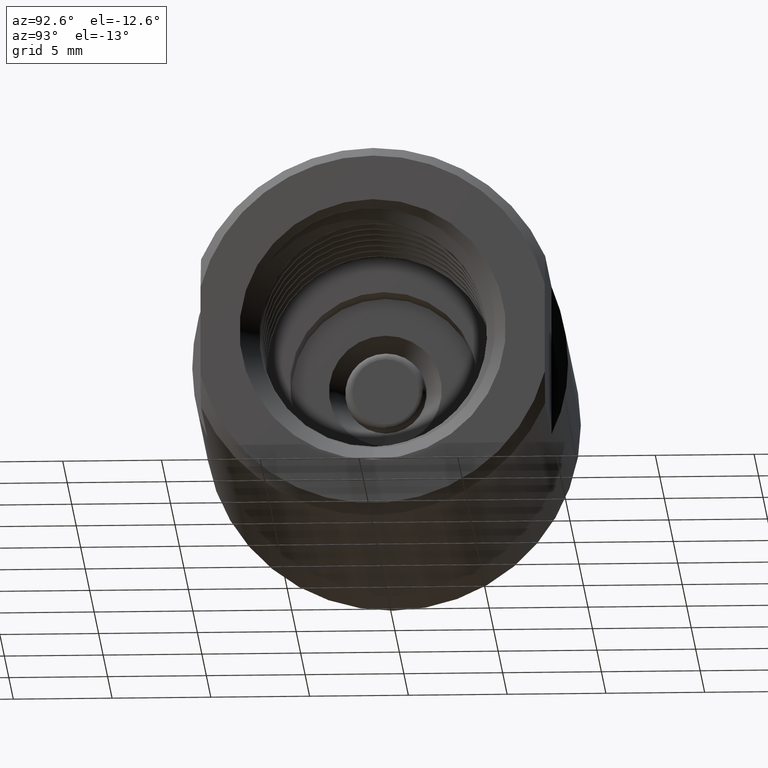
[diagram: clean part render]
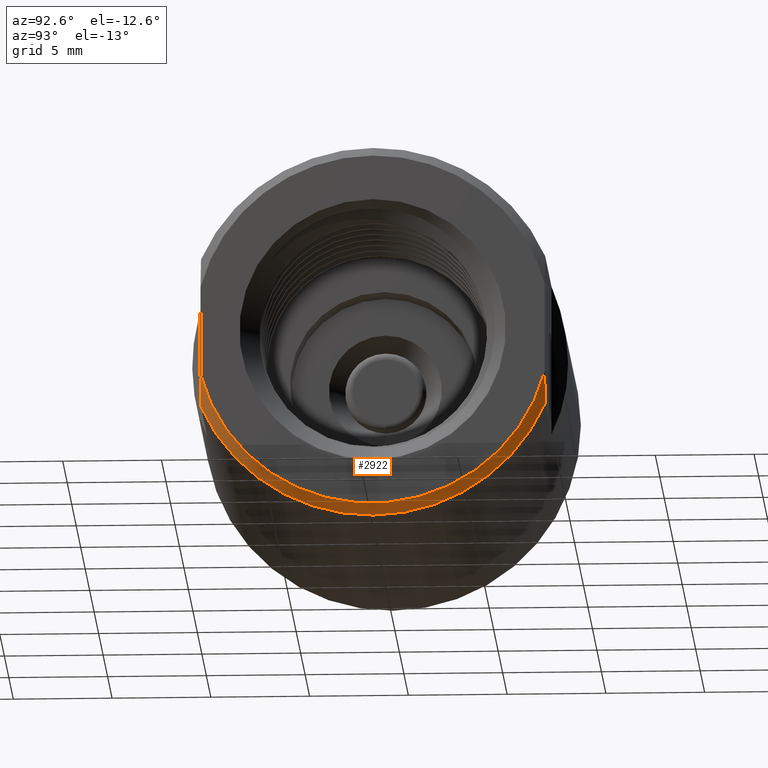
[diagram: same view with one face highlighted and labeled with its STEP entity id]
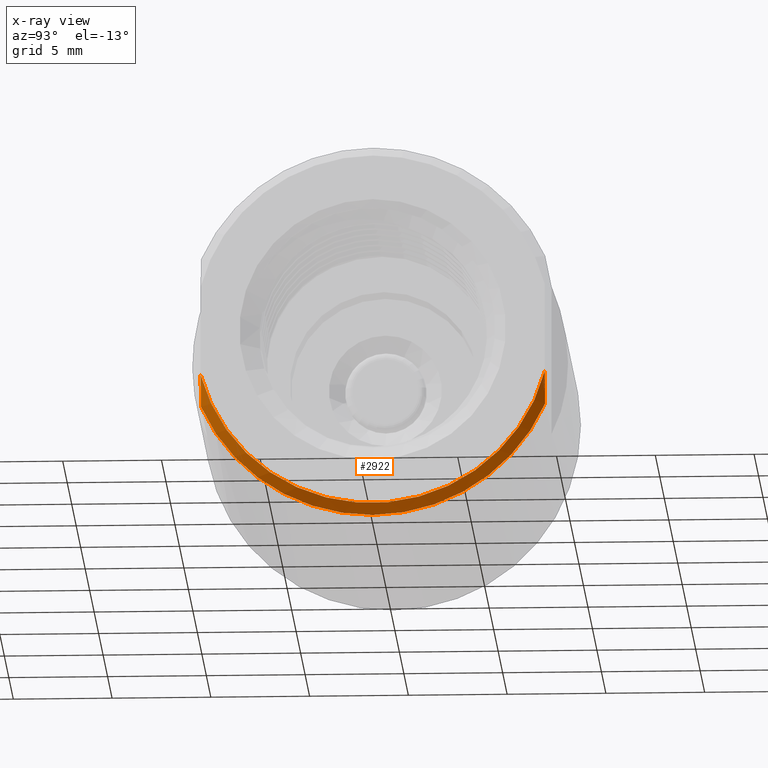
[diagram: x-ray of the same camera — body ghosted, the highlighted face saturated]
A machine part, auxiliary view. The second image highlights one B-rep face of the part: STEP entity #2922.
The next image is the same camera in x-ray: the body ghosted, the highlighted face saturated — about 0% of this face is hidden behind the body in this view.
In plain terms, the highlighted conical surface has half-angle 45 deg.
Its self-contained STEP definition (entity closure, byte-faithful):
#219 = CARTESIAN_POINT ( 'NONE',  ( 0.7607499999999999263, 4.586302262806837466E-17, -0.3744999999999999996 ) ) ;
#357 = CARTESIAN_POINT ( 'NONE',  ( 0.7807499999999999440, 0.3430000000000000271, -0.08956143143116906957 ) ) ;
#366 = EDGE_LOOP ( 'NONE', ( #8788, #3527, #2226, #3748, #3870 ) ) ;
#458 = CIRCLE ( 'NONE', #3068, 0.3744999999999999996 ) ;
#566 = EDGE_CURVE ( 'NONE', #3041, #7003, #1808, .T. ) ;
#898 = VERTEX_POINT ( 'NONE', #7551 ) ;
#949 = VERTEX_POINT ( 'NONE', #357 ) ;
#1076 = CARTESIAN_POINT ( 'NONE',  ( 0.7755398379059900149, 0.3430000000000000271, -0.1101841753155846232 ) ) ;
#1260 = DIRECTION ( 'NONE',  ( -1.000000000000000000, -0.0000000000000000000, -0.0000000000000000000 ) ) ;
#1504 = CARTESIAN_POINT ( 'NONE',  ( 0.7607499999999999263, -0.3430000000000000271, -0.1503371211644016492 ) ) ;
#1621 = AXIS2_PLACEMENT_3D ( 'NONE', #7566, #1260, #6401 ) ;
#1808 = CIRCLE ( 'NONE', #1621, 0.3744999999999999996 ) ;
#2028 = FACE_OUTER_BOUND ( 'NONE', #366, .T. ) ;
#2226 = ORIENTED_EDGE ( 'NONE', *, *, #8537, .F. ) ;
#2323 = DIRECTION ( 'NONE',  ( 0.0000000000000000000, 0.0000000000000000000, 1.000000000000000000 ) ) ;
#2383 = DIRECTION ( 'NONE',  ( -1.000000000000000000, -0.0000000000000000000, -0.0000000000000000000 ) ) ;
#2658 = CARTESIAN_POINT ( 'NONE',  ( 0.7687391776060378268, 0.3430000000000000271, -0.1304355360449863943 ) ) ;
#2740 = DIRECTION ( 'NONE',  ( 0.0000000000000000000, 0.0000000000000000000, 1.000000000000000000 ) ) ;
#2922 = ADVANCED_FACE ( 'NONE', ( #2028 ), #5933, .T. ) ;
#2965 = DIRECTION ( 'NONE',  ( -1.000000000000000000, -0.0000000000000000000, -0.0000000000000000000 ) ) ;
#2992 = VERTEX_POINT ( 'NONE', #10738 ) ;
#3031 = EDGE_CURVE ( 'NONE', #949, #3041, #9006, .T. ) ;
#3041 = VERTEX_POINT ( 'NONE', #6340 ) ;
#3068 = AXIS2_PLACEMENT_3D ( 'NONE', #4139, #2383, #2323 ) ;
#3318 = CARTESIAN_POINT ( 'NONE',  ( 0.7754860745239339215, -0.3430000000000000271, -0.1103969802990938665 ) ) ;
#3375 = CARTESIAN_POINT ( 'NONE',  ( 0.7686738325619770773, -0.3430000000000000271, -0.1305983149967929469 ) ) ;
#3527 = ORIENTED_EDGE ( 'NONE', *, *, #7278, .T. ) ;
#3748 = ORIENTED_EDGE ( 'NONE', *, *, #4140, .F. ) ;
#3870 = ORIENTED_EDGE ( 'NONE', *, *, #566, .F. ) ;
#3882 = AXIS2_PLACEMENT_3D ( 'NONE', #10983, #2965, #4243 ) ;
#4139 = CARTESIAN_POINT ( 'NONE',  ( 0.7607499999999999263, 0.0000000000000000000, 0.0000000000000000000 ) ) ;
#4140 = EDGE_CURVE ( 'NONE', #7003, #2992, #458, .T. ) ;
#4243 = DIRECTION ( 'NONE',  ( 0.0000000000000000000, 0.0000000000000000000, 1.000000000000000000 ) ) ;
#4921 = B_SPLINE_CURVE_WITH_KNOTS ( 'NONE', 3,
 ( #1504, #3375, #3318, #6604 ),
 .UNSPECIFIED., .F., .F.,
 ( 4, 4 ),
 ( 0.01910530815203981617, 0.02072917481132930534 ),
 .UNSPECIFIED. ) ;
#5933 = CONICAL_SURFACE ( 'NONE', #3882, 0.3744999999999999996, 0.7853981633974466137 ) ;
#6340 = CARTESIAN_POINT ( 'NONE',  ( 0.7607499999999999263, 0.3430000000000000271, -0.1503371211644016492 ) ) ;
#6401 = DIRECTION ( 'NONE',  ( 0.0000000000000000000, 0.0000000000000000000, 1.000000000000000000 ) ) ;
#6604 = CARTESIAN_POINT ( 'NONE',  ( 0.7807499999999999440, -0.3430000000000000271, -0.08956143143116906957 ) ) ;
#7003 = VERTEX_POINT ( 'NONE', #219 ) ;
#7278 = EDGE_CURVE ( 'NONE', #949, #898, #8855, .T. ) ;
#7551 = CARTESIAN_POINT ( 'NONE',  ( 0.7807499999999999440, -0.3430000000000000271, -0.08956143143116906957 ) ) ;
#7566 = CARTESIAN_POINT ( 'NONE',  ( 0.7607499999999999263, 0.0000000000000000000, 0.0000000000000000000 ) ) ;
#7988 = CARTESIAN_POINT ( 'NONE',  ( 0.7607499999999999263, 0.3430000000000000271, -0.1503371211644016492 ) ) ;
#8296 = AXIS2_PLACEMENT_3D ( 'NONE', #8945, #11463, #2740 ) ;
#8537 = EDGE_CURVE ( 'NONE', #2992, #898, #4921, .T. ) ;
#8788 = ORIENTED_EDGE ( 'NONE', *, *, #3031, .F. ) ;
#8855 = CIRCLE ( 'NONE', #8296, 0.3544999999999999818 ) ;
#8945 = CARTESIAN_POINT ( 'NONE',  ( 0.7807499999999999440, 0.0000000000000000000, 0.0000000000000000000 ) ) ;
#9006 = B_SPLINE_CURVE_WITH_KNOTS ( 'NONE', 3,
 ( #9742, #1076, #2658, #7988 ),
 .UNSPECIFIED., .F., .F.,
 ( 4, 4 ),
 ( 0.02532600727109378391, 0.02695002695537466325 ),
 .UNSPECIFIED. ) ;
#9742 = CARTESIAN_POINT ( 'NONE',  ( 0.7807499999999999440, 0.3430000000000000271, -0.08956143143116906957 ) ) ;
#10738 = CARTESIAN_POINT ( 'NONE',  ( 0.7607499999999999263, -0.3430000000000000271, -0.1503371211644016492 ) ) ;
#10983 = CARTESIAN_POINT ( 'NONE',  ( 0.7607499999999999263, 0.0000000000000000000, 0.0000000000000000000 ) ) ;
#11463 = DIRECTION ( 'NONE',  ( -1.000000000000000000, -0.0000000000000000000, -0.0000000000000000000 ) ) ;